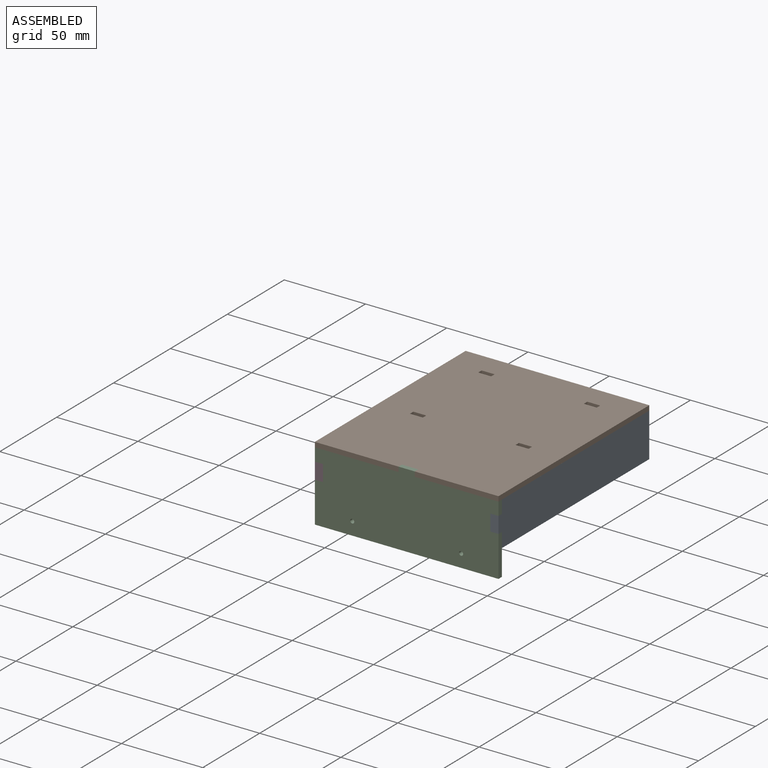
[diagram: assembled view]
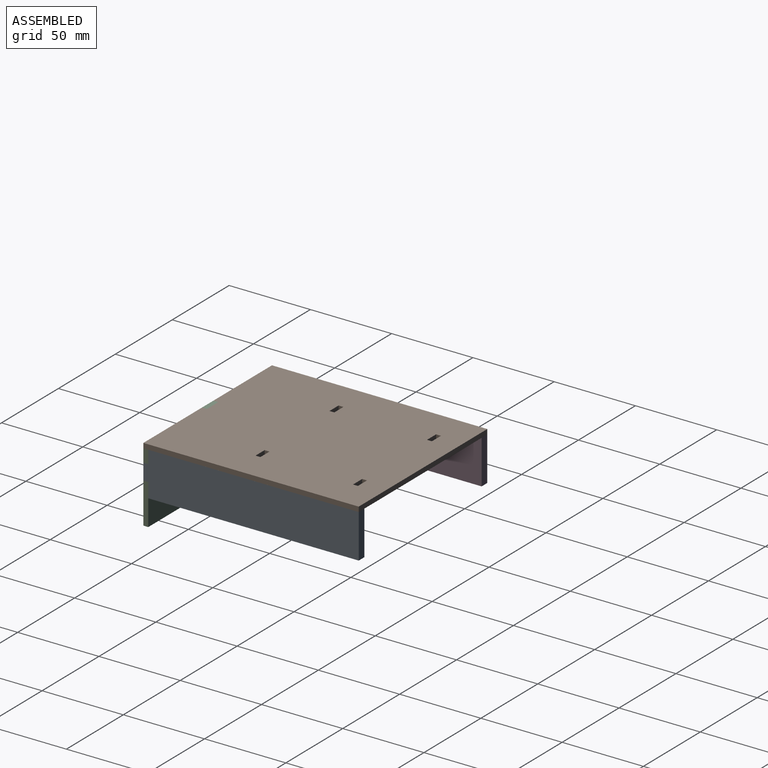
[diagram: assembled view, second angle]
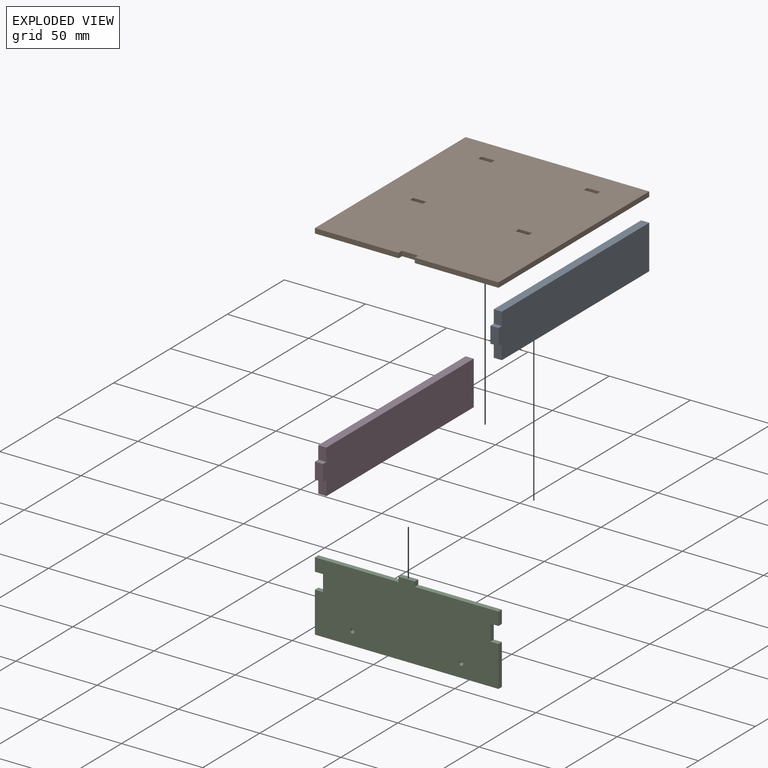
[diagram: exploded view]
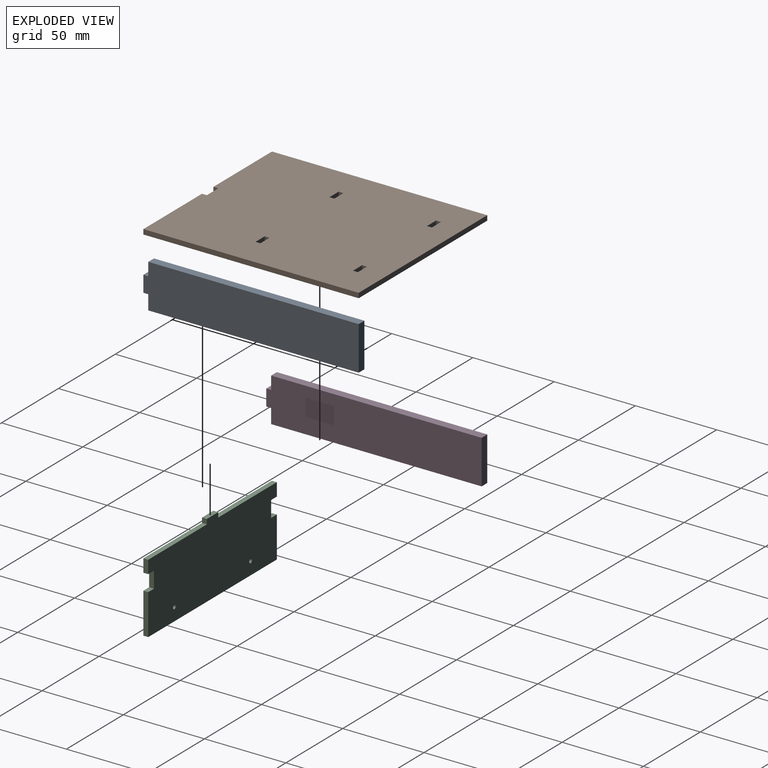
[diagram: exploded view, second angle]
ASSEMBLY  parts=4 mates=3
PART A: 10 faces, bbox 132.5x27x5 mm
  f0: plane 129.5x5mm, normal (0,-1,0), area 647.5mm2, adj f1,f7,f8,f9
  f1: plane 27x5mm, normal (1,0,0), area 135mm2, adj f0,f2,f8,f9
  f2: plane 129.5x5mm, normal (0,1,0), area 647.5mm2, adj f1,f3,f8,f9
  f3: plane 8x5mm, normal (-1,0,0), area 40mm2, adj f2,f4,f8,f9
  f4: plane 5x3mm, normal (0,1,0), area 15mm2, adj f3,f5,f8,f9
  f5: plane 10x5mm, normal (-1,0,0), area 50mm2, adj f4,f6,f8,f9
  f6: plane 5x3mm, normal (0,-1,0), area 15mm2, adj f5,f7,f8,f9
  f7: plane 9x5mm, normal (-1,0,0), area 45mm2, adj f0,f6,f8,f9
  f8: plane 132.5x27mm, normal (0,0,1), area 3526.5mm2, adj f0,f1,f2,f3,f4,f5,f6,f7
  f9: plane 132.5x27mm, normal (0,0,-1), area 3526.5mm2, adj f0,f1,f2,f3,f4,f5,f6,f7
PART B: 26 faces, bbox 113x132.5x3 mm
  f0: plane 113x3mm, normal (0,1,0), area 339mm2, adj f1,f23,f24,f25
  f1: plane 132.5x3mm, normal (-1,0,0), area 397.5mm2, adj f0,f2,f24,f25
  f2: plane 51.5x3mm, normal (0,-1,0), area 154.5mm2, adj f1,f3,f24,f25
  f3: plane 3x3mm, normal (1,0,0), area 9mm2, adj f2,f4,f24,f25
  f4: plane 10x3mm, normal (0,-1,0), area 30mm2, adj f3,f5,f24,f25
  f5: plane 3x3mm, normal (-1,0,0), area 9mm2, adj f4,f6,f24,f25
  f6: plane 51.5x3mm, normal (0,-1,0), area 154.5mm2, adj f5,f23,f24,f25
  f7: plane 3x3mm, normal (-1,0,0), area 9mm2, adj f8,f19,f24,f25
  f8: plane 8x3mm, normal (0,1,0), area 24mm2, adj f7,f9,f24,f25
  f9: plane 3x3mm, normal (1,0,0), area 9mm2, adj f8,f19,f24,f25
  f10: plane 3x3mm, normal (-1,0,0), area 9mm2, adj f11,f20,f24,f25
  f11: plane 8x3mm, normal (0,1,0), area 24mm2, adj f10,f12,f24,f25
  f12: plane 3x3mm, normal (1,0,0), area 9mm2, adj f11,f20,f24,f25
  f13: plane 3x3mm, normal (-1,0,0), area 9mm2, adj f14,f21,f24,f25
  f14: plane 8x3mm, normal (0,1,0), area 24mm2, adj f13,f15,f24,f25
  f15: plane 3x3mm, normal (1,0,0), area 9mm2, adj f14,f21,f24,f25
  f16: plane 3x3mm, normal (-1,0,0), area 9mm2, adj f17,f22,f24,f25
  f17: plane 8x3mm, normal (0,1,0), area 24mm2, adj f16,f18,f24,f25
  f18: plane 3x3mm, normal (1,0,0), area 9mm2, adj f17,f22,f24,f25
  f19: plane 8x3mm, normal (0,-1,0), area 24mm2, adj f7,f9,f24,f25
  f20: plane 8x3mm, normal (0,-1,0), area 24mm2, adj f10,f12,f24,f25
  f21: plane 8x3mm, normal (0,-1,0), area 24mm2, adj f13,f15,f24,f25
  f22: plane 8x3mm, normal (0,-1,0), area 24mm2, adj f16,f18,f24,f25
  f23: plane 132.5x3mm, normal (1,0,0), area 397.5mm2, adj f0,f6,f24,f25
  f24: plane 132.5x113mm, normal (0,0,1), area 14846.5mm2, adj f0,f1,f2,f3,f4,f5,f6,f7
  f25: plane 132.5x113mm, normal (0,0,-1), area 14846.5mm2, adj f0,f1,f2,f3,f4,f5,f6,f7
PART C: 20 faces, bbox 113x46x3 mm
  f0: plane 8x3mm, normal (1,0,0), area 24mm2, adj f1,f16,f18,f19
  f1: plane 51.5x3mm, normal (0,1,0), area 154.5mm2, adj f0,f2,f18,f19
  f2: plane 3x3mm, normal (1,0,0), area 9mm2, adj f1,f3,f18,f19
  f3: plane 10x3mm, normal (0,1,0), area 30mm2, adj f2,f4,f18,f19
  f4: plane 3x3mm, normal (-1,0,0), area 9mm2, adj f3,f5,f18,f19
  f5: plane 51.5x3mm, normal (0,1,0), area 154.5mm2, adj f4,f6,f18,f19
  f6: plane 8x3mm, normal (-1,0,0), area 24mm2, adj f5,f7,f18,f19
  f7: plane 5x3mm, normal (0,-1,0), area 15mm2, adj f6,f8,f18,f19
  f8: plane 10x3mm, normal (-1,0,0), area 30mm2, adj f7,f9,f18,f19
  f9: plane 5x3mm, normal (0,1,0), area 15mm2, adj f8,f10,f18,f19
  f10: plane 25x3mm, normal (-1,0,0), area 75mm2, adj f9,f11,f18,f19
  f11: plane 113x3mm, normal (0,-1,0), area 339mm2, adj f10,f12,f18,f19
  f12: plane 25x3mm, normal (1,0,0), area 75mm2, adj f11,f13,f18,f19
  f13: plane 5x3mm, normal (0,1,0), area 15mm2, adj f12,f14,f18,f19
  f14: plane 10x3mm, normal (1,0,0), area 30mm2, adj f13,f16,f18,f19
  f15: cylinder r=1.25mm len=3mm, axis (0,0,-1), area 23.6mm2, adj f18,f19
  f16: plane 5x3mm, normal (0,-1,0), area 15mm2, adj f0,f14,f18,f19
  f17: cylinder r=1.25mm len=3mm, axis (0,0,-1), area 23.6mm2, adj f18,f19
  f18: plane 113x46mm, normal (0,0,1), area 4779.2mm2, adj f0,f1,f2,f3,f4,f5,f6,f7
  f19: plane 113x46mm, normal (0,0,-1), area 4779.2mm2, adj f0,f1,f2,f3,f4,f5,f6,f7
PART D: same geometry as A
PLACE A rot(axis=(0.58,0.58,0.58),120deg) t=(66.67,25.28,11.12)mm
PLACE B t=(15.17,23.78,24.62)mm
PLACE C rot(axis=(1,0,0),90deg) t=(15.17,-39.47,3.12)mm
PLACE D rot(axis=(0.58,0.58,0.58),120deg) t=(-41.33,25.28,11.12)mm
MATE fastened C.f7 <-> D.f4  axis (0,0,-1) through (-38.83,-40.97,16.62)mm
MATE fastened B.f3 <-> C.f4  axis (1,0,0) through (10.17,-40.97,26.12)mm
MATE fastened A.f4 <-> C.f16  axis (0,0,1) through (69.17,-40.97,16.62)mm
